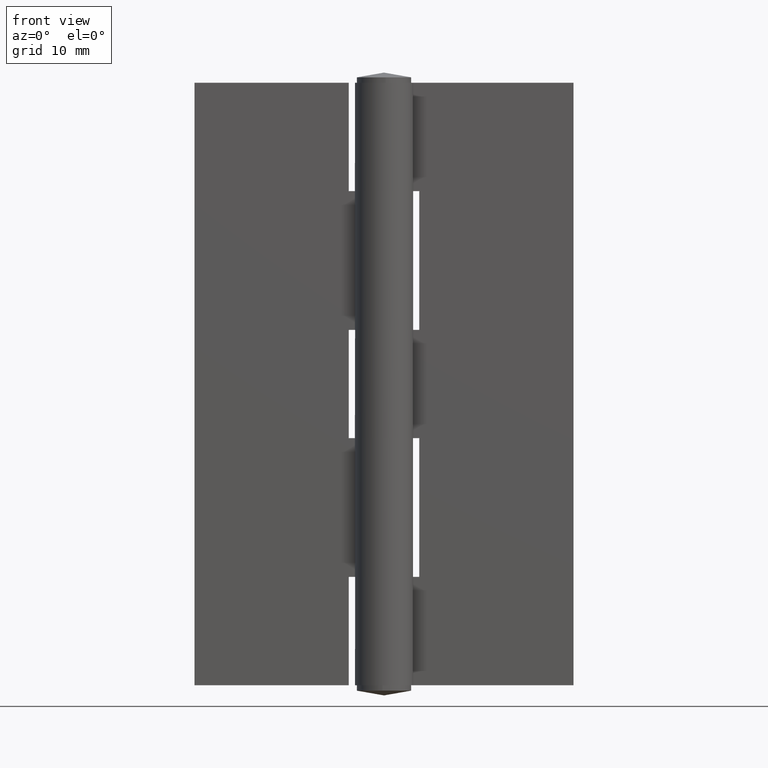
[diagram: clean part render]
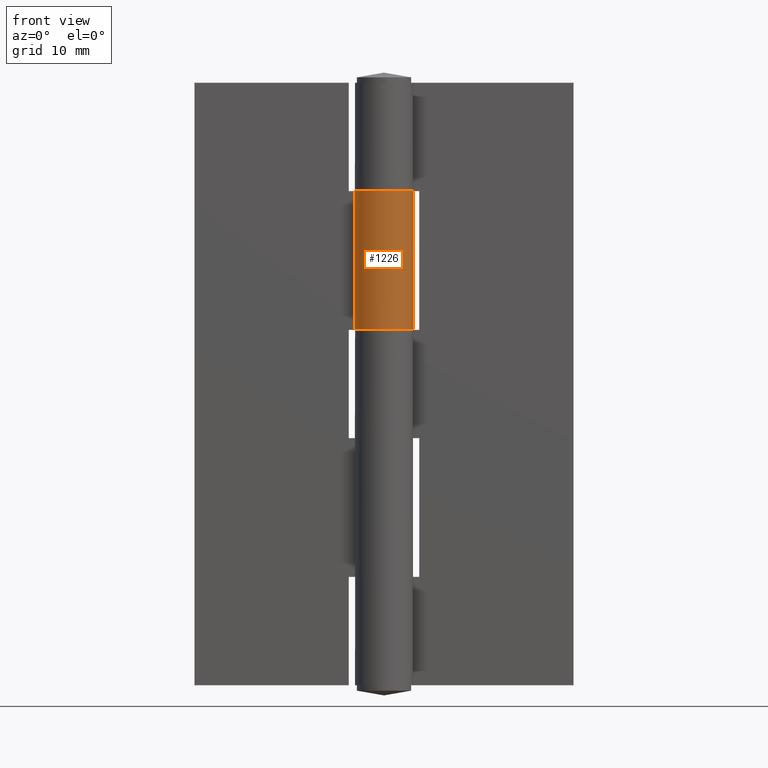
[diagram: same view with one face highlighted and labeled with its STEP entity id]
A machine part, front view. The second image highlights one B-rep face of the part: STEP entity #1226.
In plain terms, the highlighted face is a freeform B-spline surface patch.
Its self-contained STEP definition (entity closure, byte-faithful):
#709=CARTESIAN_POINT('',(-4.224926034855630,0.800000000000023,73.0));
#710=VERTEX_POINT('',#709);
#716=CARTESIAN_POINT('',(-3.462296188947490,2.550000999999895,73.0));
#717=VERTEX_POINT('',#716);
#718=CARTESIAN_POINT('',(-3.462296188947490,2.550000999999895,73.0));
#719=CARTESIAN_POINT('',(-3.171888259626399,2.944828618226982,73.000000000000114));
#720=CARTESIAN_POINT('',(-2.561732744894490,3.529903428610000,72.999999999999673));
#721=CARTESIAN_POINT('',(-1.595639245777968,4.025871298694809,73.000000000000071));
#722=CARTESIAN_POINT('',(-0.852752248039367,4.230794075417000,73.000000000000156));
#723=CARTESIAN_POINT('',(-0.170300390872237,4.313834388761000,72.999999999999915));
#724=CARTESIAN_POINT('',(0.485523549047147,4.292321640866743,73.000000000000085));
#725=CARTESIAN_POINT('',(1.176151479340029,4.153689457836663,72.999999999999957));
#726=CARTESIAN_POINT('',(1.930005520272640,3.876952936406495,73.000000000000369));
#727=CARTESIAN_POINT('',(2.712637048385343,3.389478398300348,73.000000000000242));
#728=CARTESIAN_POINT('',(3.413967722282025,2.672431149094521,73.000000000000668));
#729=CARTESIAN_POINT('',(3.922481721090640,1.846975237052240,72.999999999999773));
#730=CARTESIAN_POINT('',(4.210081544271304,1.006917910811319,73.000000000000099));
#731=CARTESIAN_POINT('',(4.308088658941773,0.259072473492605,72.999999999999744));
#732=CARTESIAN_POINT('',(4.294772963095455,-0.493775260498499,73.000000000001450));
#733=CARTESIAN_POINT('',(4.142296542435577,-1.268134657956868,72.999999999997030));
#734=CARTESIAN_POINT('',(3.818700050982752,-2.022276057243576,73.000000000000014));
#735=CARTESIAN_POINT('',(3.425962496030810,-2.626646647182438,72.999999999999801));
#736=CARTESIAN_POINT('',(2.901354471534964,-3.212852948167977,73.000000000000128));
#737=CARTESIAN_POINT('',(2.242090793336316,-3.704976647129929,73.000000000000497));
#738=CARTESIAN_POINT('',(1.513816606157807,-4.044273966789534,73.000000000000568));
#739=CARTESIAN_POINT('',(0.773140795254488,-4.254508032094539,72.999999999988049));
#740=CARTESIAN_POINT('',(0.004231726454952,-4.327126212515392,73.000000000034419));
#741=CARTESIAN_POINT('',(-0.729916882569626,-4.253712541755090,72.999999999988617));
#742=CARTESIAN_POINT('',(-1.396396866782480,-4.085119869275186,73.000000000005073));
#743=CARTESIAN_POINT('',(-2.000333895564636,-3.828626028818318,72.999999999998352));
#744=CARTESIAN_POINT('',(-2.691331810267811,-3.388801060078549,73.000000000000711));
#745=CARTESIAN_POINT('',(-3.215740838719918,-2.889721901000184,72.999999999999787));
#746=CARTESIAN_POINT('',(-3.690342398164049,-2.243465419378572,73.000000000000043));
#747=CARTESIAN_POINT('',(-4.080193613246183,-1.483648957511544,73.0));
#748=CARTESIAN_POINT('',(-4.336969468558227,-0.409092919364518,72.999999999999957));
#749=CARTESIAN_POINT('',(-4.301049738942989,0.398739309160703,73.000000000000043));
#750=CARTESIAN_POINT('',(-4.224926034855630,0.800000000000023,73.0));
#751=B_SPLINE_CURVE_WITH_KNOTS('',3,(#718,#719,#720,#721,#722,#723,#724,#725,#726,#727,#728,#729,#730,#731,#732,#733,#734,#735,#736,#737,#738,#739,#740,#741,#742,#743,#744,#745,#746,#747,#748,#749,#750),.UNSPECIFIED.,.F.,.U.,(4,1,1,1,1,1,1,1,1,1,1,1,1,1,1,1,1,1,1,1,1,1,1,1,1,1,1,1,1,1,4),(0.000000597835768,1.470275758702854,2.499471372168056,3.234628129425389,3.773746842137424,4.557884488019052,5.195022648313493,5.881180325780491,6.959337076106831,7.939522487762922,8.870703519759612,9.850905806090397,10.586055859870079,11.125188619787860,12.105353539402300,12.938457003410630,13.575575108546129,14.261748046375001,15.290944034387850,16.026097519334211,16.663238005631271,17.594411779377872,18.329593727408700,18.868589817672468,19.652786609873989,20.289909308265980,21.319100292821300,21.809207662209030,22.691394075122439,23.867622019840159,25.092843756867541),.UNSPECIFIED.);
#752=EDGE_CURVE('',#717,#710,#751,.T.);
#873=CARTESIAN_POINT('',(-3.462296188947490,2.550000999999895,52.500000000000000));
#874=VERTEX_POINT('',#873);
#880=CARTESIAN_POINT('',(-4.224926034855630,0.800000000000023,52.500000000000000));
#881=VERTEX_POINT('',#880);
#882=CARTESIAN_POINT('',(-3.462296188947490,2.550000999999895,52.500000000000000));
#883=CARTESIAN_POINT('',(-3.268592681576886,2.813125483036778,52.500000000000270));
#884=CARTESIAN_POINT('',(-2.910326291282488,3.198457513988875,52.499999999999538));
#885=CARTESIAN_POINT('',(-2.266592960898159,3.677409691728387,52.500000000000163));
#886=CARTESIAN_POINT('',(-1.697175244023358,3.969806795645622,52.500000000000000));
#887=CARTESIAN_POINT('',(-1.013856893112843,4.196651110210737,52.499999999999673));
#888=CARTESIAN_POINT('',(-0.301684479748717,4.316482044933566,52.500000000000227));
#889=CARTESIAN_POINT('',(0.436650586903840,4.296424847169373,52.499999999999403));
#890=CARTESIAN_POINT('',(1.176532911463411,4.156699744258510,52.500000000001172));
#891=CARTESIAN_POINT('',(1.916494592488898,3.885013840754992,52.499999999998813));
#892=CARTESIAN_POINT('',(2.583572983457869,3.464168893731893,52.500000000000277));
#893=CARTESIAN_POINT('',(3.191385331203652,2.916094931418334,52.500000000001293));
#894=CARTESIAN_POINT('',(3.756395968686986,2.188977298311675,52.499999999998657));
#895=CARTESIAN_POINT('',(4.171462628069302,1.217775928990169,52.500000000000668));
#896=CARTESIAN_POINT('',(4.334418028978591,0.162132989603191,52.499999999999432));
#897=CARTESIAN_POINT('',(4.263134494807093,-0.789531438451954,52.500000000001592));
#898=CARTESIAN_POINT('',(4.003556902549809,-1.637501119801160,52.499999999997037));
#899=CARTESIAN_POINT('',(3.590750907255501,-2.420760322370648,52.500000000001037));
#900=CARTESIAN_POINT('',(2.993684595431699,-3.143997118756447,52.499999999999481));
#901=CARTESIAN_POINT('',(2.242084016908701,-3.704971094702646,52.500000000000483));
#902=CARTESIAN_POINT('',(1.513816393031263,-4.044273715185024,52.500000000000362));
#903=CARTESIAN_POINT('',(0.773140778897543,-4.254507959553773,52.499999999991452));
#904=CARTESIAN_POINT('',(0.004231575939708,-4.327126640462967,52.500000000024713));
#905=CARTESIAN_POINT('',(-0.729915699747839,-4.253709887876517,52.499999999991893));
#906=CARTESIAN_POINT('',(-1.428129857347438,-4.077104056823185,52.500000000003993));
#907=CARTESIAN_POINT('',(-2.165158430519439,-3.754171820747237,52.499999999997947));
#908=CARTESIAN_POINT('',(-2.962633569374409,-3.173291049953029,52.500000000001052));
#909=CARTESIAN_POINT('',(-3.579188529287227,-2.444010658889452,52.499999999999631));
#910=CARTESIAN_POINT('',(-4.030677343703782,-1.587871388504933,52.500000000000092));
#911=CARTESIAN_POINT('',(-4.329541472554343,-0.526751554962134,52.499999999999957));
#912=CARTESIAN_POINT('',(-4.316458638456664,0.318487524943717,52.500000000000007));
#913=CARTESIAN_POINT('',(-4.224926034855630,0.800000000000023,52.500000000000000));
#914=B_SPLINE_CURVE_WITH_KNOTS('',3,(#882,#883,#884,#885,#886,#887,#888,#889,#890,#891,#892,#893,#894,#895,#896,#897,#898,#899,#900,#901,#902,#903,#904,#905,#906,#907,#908,#909,#910,#911,#912,#913),.UNSPECIFIED.,.F.,.U.,(4,1,1,1,1,1,1,1,1,1,1,1,1,1,1,1,1,1,1,1,1,1,1,1,1,1,1,1,1,4),(0.000000597835772,0.980187456917093,1.568288217335322,2.401456640521808,2.891560412053977,3.724725606669725,4.557884488019052,5.097025711311449,5.979165856386587,6.910287467221405,7.449422110697419,8.429628140121736,9.654871015785055,10.586055859870079,11.615283537162680,12.497466011969820,13.232539448509320,14.261748046375009,15.290944034387850,16.026097519334211,16.663238005631271,17.594411779377872,18.329593727408700,18.868589817672468,19.750779990560819,20.730975322781909,21.809207662209030,22.593376979419968,23.622567964975079,25.092843756867541),.UNSPECIFIED.);
#915=EDGE_CURVE('',#874,#881,#914,.T.);
#1179=CARTESIAN_POINT('',(-4.224926034855630,0.800000000000023,73.0));
#1180=CARTESIAN_POINT('',(-4.224926034855630,0.800000000000023,52.500000000000000));
#1181=QUASI_UNIFORM_CURVE('',1,(#1179,#1180),.UNSPECIFIED.,.F.,.U.);
#1182=EDGE_CURVE('',#710,#881,#1181,.T.);
#1190=CARTESIAN_POINT('',(-4.191944125087931,0.957916725055850,73.512500000000017));
#1191=CARTESIAN_POINT('',(-4.191944125087931,0.957916725055850,51.974687500000002));
#1192=CARTESIAN_POINT('',(-5.073565409294473,-2.900150543439246,73.512500000000017));
#1193=CARTESIAN_POINT('',(-5.073565409294473,-2.900150543439246,51.974687500000009));
#1194=CARTESIAN_POINT('',(-1.301754141446244,-4.098223536512843,73.512500000000017));
#1195=CARTESIAN_POINT('',(-1.301754141446244,-4.098223536512843,51.974687500000002));
#1196=CARTESIAN_POINT('',(2.470057126401986,-5.296296529586441,73.512500000000017));
#1197=CARTESIAN_POINT('',(2.470057126401986,-5.296296529586441,51.974687500000009));
#1198=CARTESIAN_POINT('',(3.976352270938219,-1.636649815141760,73.512500000000017));
#1199=CARTESIAN_POINT('',(3.976352270938219,-1.636649815141760,51.974687500000002));
#1200=CARTESIAN_POINT('',(5.482647415474453,2.022996899302923,73.512500000000017));
#1201=CARTESIAN_POINT('',(5.482647415474453,2.022996899302923,51.974687500000009));
#1202=CARTESIAN_POINT('',(1.960303349432988,3.827167461478705,73.512500000000017));
#1203=CARTESIAN_POINT('',(1.960303349432988,3.827167461478705,51.974687500000002));
#1204=CARTESIAN_POINT('',(-1.562040716608477,5.631338023654489,73.512500000000017));
#1205=CARTESIAN_POINT('',(-1.562040716608477,5.631338023654489,51.974687500000009));
#1206=CARTESIAN_POINT('',(-3.651693857844997,2.270491569809928,73.512500000000017));
#1207=CARTESIAN_POINT('',(-3.651693857844997,2.270491569809928,51.974687500000002));
#1215=(BOUNDED_SURFACE()B_SPLINE_SURFACE(1,2,((#1190,#1192,#1194,#1196,#1198,#1200,#1202,#1204,#1206),(#1191,#1193,#1195,#1197,#1199,#1201,#1203,#1205,#1207)),.UNSPECIFIED.,.F.,.F.,.U.)B_SPLINE_SURFACE_WITH_KNOTS((2,2),(3,2,2,2,3),(0.0,21.537812500000019),(0.0,6.710323010903789,13.420646021807579,20.130969032711370,26.841292043615159),.UNSPECIFIED.)GEOMETRIC_REPRESENTATION_ITEM()RATIONAL_B_SPLINE_SURFACE(((1.0,0.735801674200394,1.0,0.735801674200394,1.0,0.735801674200394,1.0,0.735801674200394,1.0),(1.0,0.735801674200394,1.0,0.735801674200394,1.0,0.735801674200394,1.0,0.735801674200394,1.0)))REPRESENTATION_ITEM('')SURFACE());
#1216=CARTESIAN_POINT('',(-3.462296188947490,2.550000999999895,73.0));
#1217=CARTESIAN_POINT('',(-3.462296188947490,2.550000999999895,52.500000000000000));
#1218=QUASI_UNIFORM_CURVE('',1,(#1216,#1217),.UNSPECIFIED.,.F.,.U.);
#1219=EDGE_CURVE('',#717,#874,#1218,.T.);
#1220=ORIENTED_EDGE('',*,*,#1219,.F.);
#1221=ORIENTED_EDGE('',*,*,#752,.T.);
#1222=ORIENTED_EDGE('',*,*,#1182,.T.);
#1223=ORIENTED_EDGE('',*,*,#915,.F.);
#1224=EDGE_LOOP('',(#1220,#1221,#1222,#1223));
#1225=FACE_OUTER_BOUND('',#1224,.T.);
#1226=ADVANCED_FACE('',(#1225),#1215,.T.);